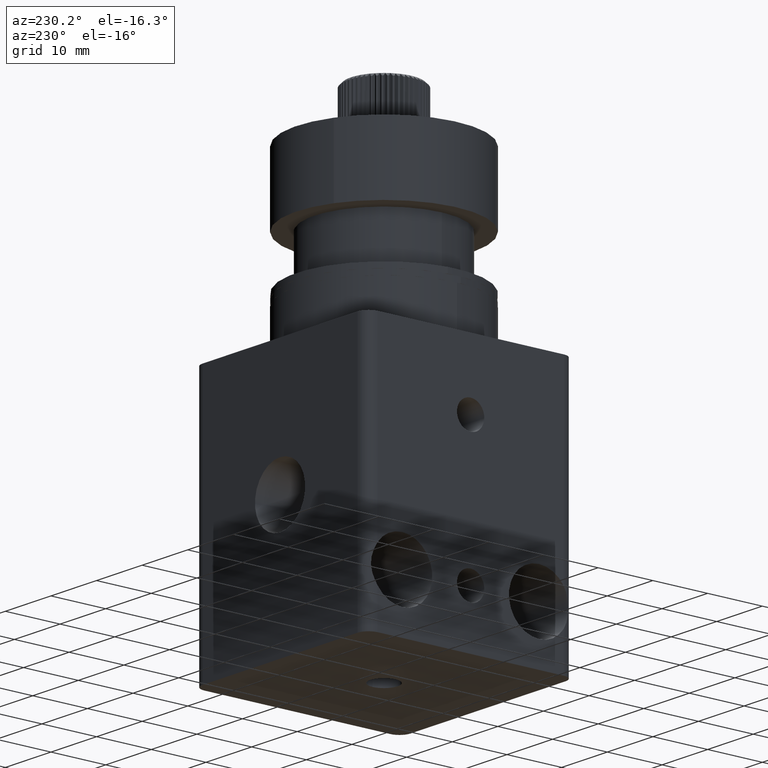
[diagram: clean part render]
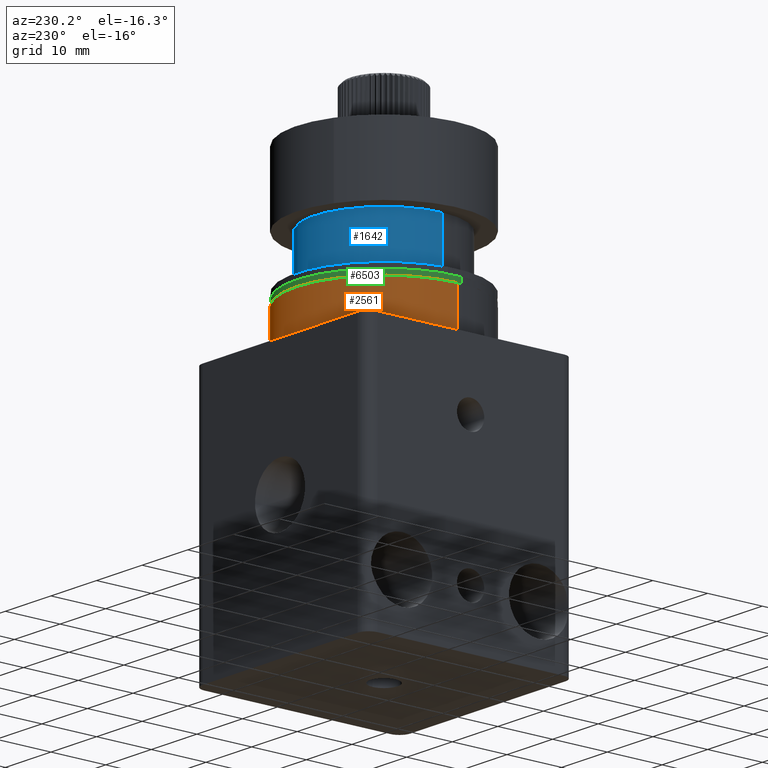
[diagram: same view with three faces highlighted in distinct colors, each labeled with its STEP entity id]
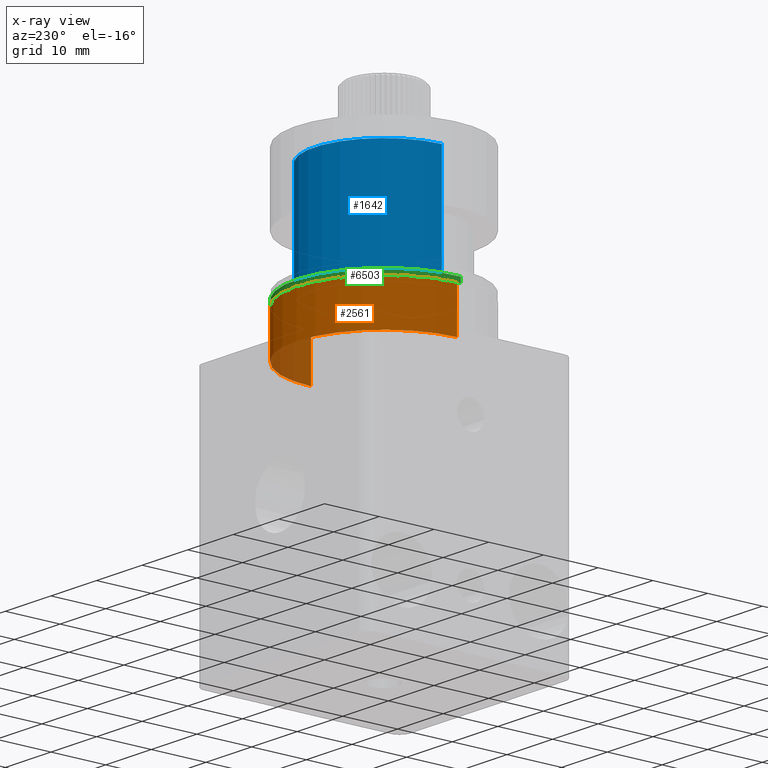
[diagram: x-ray of the same camera — body ghosted, the three highlighted faces saturated]
A machine part, auxiliary view with three faces highlighted in distinct colors.
The next image is the same camera in x-ray (body ghosted, the three faces saturated) — at least one of them is partly hidden behind the body in this view.
Their STEP definitions:

[orange] entity #2561 — the highlighted cylindrical surface (partial cylindrical patch) has radius 16 mm, axis along (-0, -0, -1).
#222 = FACE_OUTER_BOUND ( 'NONE', #8094, .T. ) ;
#347 = EDGE_CURVE ( 'NONE', #5785, #5970, #2739, .T. ) ;
#549 = ORIENTED_EDGE ( 'NONE', *, *, #347, .F. ) ;
#603 = EDGE_CURVE ( 'NONE', #5785, #6480, #1441, .T. ) ;
#693 = CARTESIAN_POINT ( 'NONE',  ( 37.62291667820559100, 52.78689962133746900, 50.22749317272971600 ) ) ;
#707 = AXIS2_PLACEMENT_3D ( 'NONE', #5610, #8159, #3009 ) ;
#744 = CARTESIAN_POINT ( 'NONE',  ( 53.62291667820559100, 52.78689962133746900, 58.22749317272971600 ) ) ;
#1328 = DIRECTION ( 'NONE',  ( 0.0000000000000000000, 0.0000000000000000000, 1.000000000000000000 ) ) ;
#1431 = LINE ( 'NONE', #8246, #6634 ) ;
#1441 = LINE ( 'NONE', #744, #4636 ) ;
#1586 = ORIENTED_EDGE ( 'NONE', *, *, #5127, .T. ) ;
#1867 = DIRECTION ( 'NONE',  ( 0.0000000000000000000, 0.0000000000000000000, 1.000000000000000000 ) ) ;
#1982 = CARTESIAN_POINT ( 'NONE',  ( 21.62291667820558800, 52.78689962133746900, 58.22749317272971600 ) ) ;
#2485 = ORIENTED_EDGE ( 'NONE', *, *, #603, .T. ) ;
#2543 = DIRECTION ( 'NONE',  ( -0.0000000000000000000, -0.0000000000000000000, -1.000000000000000000 ) ) ;
#2547 = DIRECTION ( 'NONE',  ( 1.000000000000000000, 0.0000000000000000000, 0.0000000000000000000 ) ) ;
#2561 = ADVANCED_FACE ( 'NONE', ( #222 ), #5274, .T. ) ;
#2739 = CIRCLE ( 'NONE', #5201, 16.00000000000000000 ) ;
#2796 = VERTEX_POINT ( 'NONE', #5122 ) ;
#3009 = DIRECTION ( 'NONE',  ( -1.000000000000000000, 0.0000000000000000000, 0.0000000000000000000 ) ) ;
#3245 = CIRCLE ( 'NONE', #6268, 16.00000000000000000 ) ;
#3795 = CARTESIAN_POINT ( 'NONE',  ( 37.62291667820559100, 52.78689962133746900, 58.22749317272971600 ) ) ;
#4360 = EDGE_CURVE ( 'NONE', #5970, #2796, #1431, .T. ) ;
#4636 = VECTOR ( 'NONE', #5859, 1000.000000000000000 ) ;
#5122 = CARTESIAN_POINT ( 'NONE',  ( 21.62291667820558800, 52.78689962133746900, 50.22749317272971600 ) ) ;
#5127 = EDGE_CURVE ( 'NONE', #6480, #2796, #3245, .T. ) ;
#5201 = AXIS2_PLACEMENT_3D ( 'NONE', #3795, #1867, #2547 ) ;
#5274 = CYLINDRICAL_SURFACE ( 'NONE', #707, 16.00000000000000000 ) ;
#5610 = CARTESIAN_POINT ( 'NONE',  ( 37.62291667820559100, 52.78689962133746900, 58.22749317272971600 ) ) ;
#5785 = VERTEX_POINT ( 'NONE', #8308 ) ;
#5859 = DIRECTION ( 'NONE',  ( -0.0000000000000000000, -0.0000000000000000000, -1.000000000000000000 ) ) ;
#5892 = DIRECTION ( 'NONE',  ( -1.000000000000000000, 0.0000000000000000000, 0.0000000000000000000 ) ) ;
#5970 = VERTEX_POINT ( 'NONE', #1982 ) ;
#6268 = AXIS2_PLACEMENT_3D ( 'NONE', #693, #1328, #5892 ) ;
#6480 = VERTEX_POINT ( 'NONE', #7843 ) ;
#6634 = VECTOR ( 'NONE', #2543, 1000.000000000000000 ) ;
#7103 = ORIENTED_EDGE ( 'NONE', *, *, #4360, .F. ) ;
#7843 = CARTESIAN_POINT ( 'NONE',  ( 53.62291667820559100, 52.78689962133746900, 50.22749317272971600 ) ) ;
#8094 = EDGE_LOOP ( 'NONE', ( #549, #2485, #1586, #7103 ) ) ;
#8159 = DIRECTION ( 'NONE',  ( -0.0000000000000000000, -0.0000000000000000000, -1.000000000000000000 ) ) ;
#8246 = CARTESIAN_POINT ( 'NONE',  ( 21.62291667820558800, 52.78689962133746900, 58.22749317272971600 ) ) ;
#8308 = CARTESIAN_POINT ( 'NONE',  ( 53.62291667820559100, 52.78689962133746900, 58.22749317272971600 ) ) ;

[blue] entity #1642 — the highlighted cylindrical surface (partial cylindrical patch) has radius 12.7 mm, axis along (-0, -0, -1).
#55 = VERTEX_POINT ( 'NONE', #5813 ) ;
#68 = DIRECTION ( 'NONE',  ( -0.0000000000000000000, -0.0000000000000000000, -1.000000000000000000 ) ) ;
#196 = VECTOR ( 'NONE', #4973, 1000.000000000000000 ) ;
#334 = AXIS2_PLACEMENT_3D ( 'NONE', #3027, #5606, #2417 ) ;
#474 = ORIENTED_EDGE ( 'NONE', *, *, #7412, .T. ) ;
#659 = CARTESIAN_POINT ( 'NONE',  ( 50.32291667820558700, 52.78689962133746900, 58.22749317272971600 ) ) ;
#815 = EDGE_CURVE ( 'NONE', #1054, #55, #918, .T. ) ;
#918 = CIRCLE ( 'NONE', #334, 12.69999999999999600 ) ;
#1015 = CIRCLE ( 'NONE', #7184, 12.69999999999999600 ) ;
#1022 = LINE ( 'NONE', #1750, #196 ) ;
#1054 = VERTEX_POINT ( 'NONE', #2741 ) ;
#1326 = DIRECTION ( 'NONE',  ( -1.000000000000000000, 0.0000000000000000000, 0.0000000000000000000 ) ) ;
#1350 = CARTESIAN_POINT ( 'NONE',  ( 24.92291667820558800, 52.78689962133746900, 58.22749317272971600 ) ) ;
#1642 = ADVANCED_FACE ( 'NONE', ( #3416 ), #4116, .T. ) ;
#1750 = CARTESIAN_POINT ( 'NONE',  ( 24.92291667820558800, 52.78689962133746900, 79.22749317272970900 ) ) ;
#2055 = CARTESIAN_POINT ( 'NONE',  ( 37.62291667820559100, 52.78689962133746900, 58.22749317272971600 ) ) ;
#2417 = DIRECTION ( 'NONE',  ( 1.000000000000000000, 0.0000000000000000000, 0.0000000000000000000 ) ) ;
#2669 = DIRECTION ( 'NONE',  ( 0.0000000000000000000, 0.0000000000000000000, 1.000000000000000000 ) ) ;
#2699 = DIRECTION ( 'NONE',  ( 1.000000000000000000, 0.0000000000000000000, 0.0000000000000000000 ) ) ;
#2741 = CARTESIAN_POINT ( 'NONE',  ( 50.32291667820558700, 52.78689962133746900, 79.22749317272970900 ) ) ;
#3027 = CARTESIAN_POINT ( 'NONE',  ( 37.62291667820559100, 52.78689962133746900, 79.22749317272970900 ) ) ;
#3416 = FACE_OUTER_BOUND ( 'NONE', #5320, .T. ) ;
#3765 = AXIS2_PLACEMENT_3D ( 'NONE', #4508, #5215, #1326 ) ;
#4048 = EDGE_CURVE ( 'NONE', #1054, #7484, #6741, .T. ) ;
#4116 = CYLINDRICAL_SURFACE ( 'NONE', #3765, 12.69999999999999900 ) ;
#4508 = CARTESIAN_POINT ( 'NONE',  ( 37.62291667820559100, 52.78689962133746900, 79.22749317272970900 ) ) ;
#4973 = DIRECTION ( 'NONE',  ( -0.0000000000000000000, -0.0000000000000000000, -1.000000000000000000 ) ) ;
#5100 = ORIENTED_EDGE ( 'NONE', *, *, #815, .F. ) ;
#5215 = DIRECTION ( 'NONE',  ( -0.0000000000000000000, -0.0000000000000000000, -1.000000000000000000 ) ) ;
#5320 = EDGE_LOOP ( 'NONE', ( #5100, #8181, #474, #5881 ) ) ;
#5606 = DIRECTION ( 'NONE',  ( 0.0000000000000000000, 0.0000000000000000000, 1.000000000000000000 ) ) ;
#5739 = VECTOR ( 'NONE', #68, 1000.000000000000000 ) ;
#5808 = CARTESIAN_POINT ( 'NONE',  ( 50.32291667820558700, 52.78689962133746900, 79.22749317272970900 ) ) ;
#5813 = CARTESIAN_POINT ( 'NONE',  ( 24.92291667820558800, 52.78689962133746900, 79.22749317272970900 ) ) ;
#5881 = ORIENTED_EDGE ( 'NONE', *, *, #6790, .F. ) ;
#6493 = VERTEX_POINT ( 'NONE', #1350 ) ;
#6741 = LINE ( 'NONE', #5808, #5739 ) ;
#6790 = EDGE_CURVE ( 'NONE', #55, #6493, #1022, .T. ) ;
#7184 = AXIS2_PLACEMENT_3D ( 'NONE', #2055, #2669, #2699 ) ;
#7412 = EDGE_CURVE ( 'NONE', #7484, #6493, #1015, .T. ) ;
#7484 = VERTEX_POINT ( 'NONE', #659 ) ;
#8181 = ORIENTED_EDGE ( 'NONE', *, *, #4048, .T. ) ;

[green] entity #6503 — the highlighted cylindrical surface (partial cylindrical patch) has radius 16 mm, axis along (0, 0, -1).
#78 = DIRECTION ( 'NONE',  ( 0.0000000000000000000, 0.0000000000000000000, -1.000000000000000000 ) ) ;
#596 = CARTESIAN_POINT ( 'NONE',  ( 37.62291667820559100, 52.78689962133746900, 59.22749317272971600 ) ) ;
#940 = EDGE_CURVE ( 'NONE', #4179, #7404, #4134, .T. ) ;
#1310 = EDGE_CURVE ( 'NONE', #5702, #4568, #5928, .T. ) ;
#1683 = AXIS2_PLACEMENT_3D ( 'NONE', #596, #7008, #3753 ) ;
#1999 = EDGE_LOOP ( 'NONE', ( #5854, #5686, #5211, #5810 ) ) ;
#2231 = VECTOR ( 'NONE', #3293, 1000.000000000000000 ) ;
#2235 = DIRECTION ( 'NONE',  ( -0.9989366144119459200, -0.04610466773765278100, 0.0000000000000000000 ) ) ;
#2719 = EDGE_CURVE ( 'NONE', #5702, #4179, #7980, .T. ) ;
#2916 = VECTOR ( 'NONE', #78, 1000.000000000000000 ) ;
#2929 = AXIS2_PLACEMENT_3D ( 'NONE', #4070, #5527, #3994 ) ;
#3293 = DIRECTION ( 'NONE',  ( 0.0000000000000000000, 0.0000000000000000000, -1.000000000000000000 ) ) ;
#3319 = CIRCLE ( 'NONE', #2929, 16.00000000000002800 ) ;
#3753 = DIRECTION ( 'NONE',  ( 0.9989366144119459200, 0.04610466773765278800, 0.0000000000000000000 ) ) ;
#3994 = DIRECTION ( 'NONE',  ( 0.9989366144119459200, 0.04610466773765278800, 0.0000000000000000000 ) ) ;
#4050 = CARTESIAN_POINT ( 'NONE',  ( 37.62291667820559100, 52.78689962133746900, 59.22749317272971600 ) ) ;
#4070 = CARTESIAN_POINT ( 'NONE',  ( 37.62291667820559100, 52.78689962133746900, 58.22749317272971600 ) ) ;
#4134 = LINE ( 'NONE', #7109, #2231 ) ;
#4179 = VERTEX_POINT ( 'NONE', #5352 ) ;
#4568 = VERTEX_POINT ( 'NONE', #6879 ) ;
#4594 = CARTESIAN_POINT ( 'NONE',  ( 21.63993084761445100, 52.04922493753502300, 58.22749317272971600 ) ) ;
#5211 = ORIENTED_EDGE ( 'NONE', *, *, #7249, .T. ) ;
#5228 = CARTESIAN_POINT ( 'NONE',  ( 53.60590250879675300, 53.52457430513992200, 59.22749317272971600 ) ) ;
#5352 = CARTESIAN_POINT ( 'NONE',  ( 21.63993084761445100, 52.04922493753502300, 59.22749317272971600 ) ) ;
#5527 = DIRECTION ( 'NONE',  ( 0.0000000000000000000, 0.0000000000000000000, 1.000000000000000000 ) ) ;
#5686 = ORIENTED_EDGE ( 'NONE', *, *, #1310, .T. ) ;
#5702 = VERTEX_POINT ( 'NONE', #8137 ) ;
#5782 = AXIS2_PLACEMENT_3D ( 'NONE', #4050, #7223, #2235 ) ;
#5810 = ORIENTED_EDGE ( 'NONE', *, *, #940, .F. ) ;
#5854 = ORIENTED_EDGE ( 'NONE', *, *, #2719, .F. ) ;
#5928 = LINE ( 'NONE', #5228, #2916 ) ;
#6503 = ADVANCED_FACE ( 'NONE', ( #7763 ), #7351, .T. ) ;
#6879 = CARTESIAN_POINT ( 'NONE',  ( 53.60590250879672400, 53.52457430513992200, 58.22749317272971600 ) ) ;
#7008 = DIRECTION ( 'NONE',  ( 0.0000000000000000000, 0.0000000000000000000, 1.000000000000000000 ) ) ;
#7109 = CARTESIAN_POINT ( 'NONE',  ( 21.63993084761442300, 52.04922493753502300, 59.22749317272971600 ) ) ;
#7223 = DIRECTION ( 'NONE',  ( 0.0000000000000000000, 0.0000000000000000000, -1.000000000000000000 ) ) ;
#7249 = EDGE_CURVE ( 'NONE', #4568, #7404, #3319, .T. ) ;
#7351 = CYLINDRICAL_SURFACE ( 'NONE', #5782, 16.00000000000003200 ) ;
#7404 = VERTEX_POINT ( 'NONE', #4594 ) ;
#7763 = FACE_OUTER_BOUND ( 'NONE', #1999, .T. ) ;
#7980 = CIRCLE ( 'NONE', #1683, 16.00000000000002800 ) ;
#8137 = CARTESIAN_POINT ( 'NONE',  ( 53.60590250879672400, 53.52457430513992200, 59.22749317272971600 ) ) ;